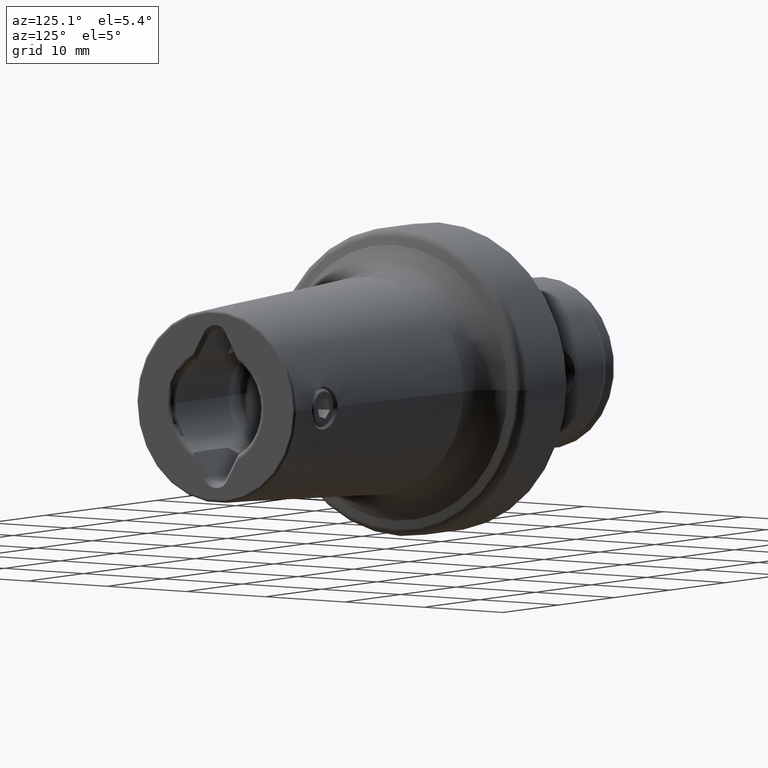
[diagram: clean part render]
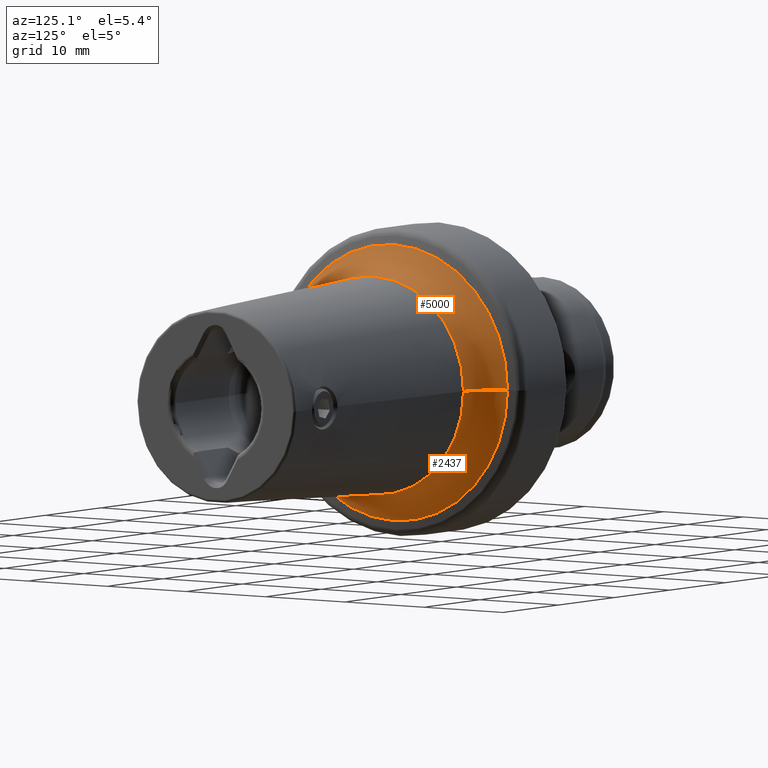
[diagram: same view with one multi-face feature highlighted, each face labeled with its STEP entity id]
A machine part, auxiliary view. The highlighted faces form ONE feature: a constant-radius fillet chain: 2 tangent blend faces with common blend radius 4 mm. The faces share edges in the B-rep.
Their STEP definitions:
[1] entity #2437 (Torus):
#1 = CIRCLE ( 'NONE', #835, 11.36020653218451300 ) ;
#100 = DIRECTION ( 'NONE',  ( 0.0000000000000000000, -1.000000000000000000, 1.224646799147353500E-016 ) ) ;
#102 = ORIENTED_EDGE ( 'NONE', *, *, #3608, .F. ) ;
#118 = ORIENTED_EDGE ( 'NONE', *, *, #3379, .F. ) ;
#123 = ORIENTED_EDGE ( 'NONE', *, *, #3262, .T. ) ;
#131 = ORIENTED_EDGE ( 'NONE', *, *, #3122, .F. ) ;
#196 = DIRECTION ( 'NONE',  ( -1.463217911389156000E-033, 1.224646799147353200E-016, 1.000000000000000000 ) ) ;
#298 = VERTEX_POINT ( 'NONE', #1690 ) ;
#377 = CARTESIAN_POINT ( 'NONE',  ( 12.31376596944992100, -15.35561945067635200, 1.880521020919563200E-015 ) ) ;
#781 = VERTEX_POINT ( 'NONE', #2693 ) ;
#835 = AXIS2_PLACEMENT_3D ( 'NONE', #2295, #2262, #2337 ) ;
#1007 = VERTEX_POINT ( 'NONE', #3657 ) ;
#1089 = AXIS2_PLACEMENT_3D ( 'NONE', #3638, #3626, #3622 ) ;
#1130 = CIRCLE ( 'NONE', #4697, 4.000000000000000000 ) ;
#1459 = TOROIDAL_SURFACE ( 'NONE', #4281, 15.35561945067635200, 4.000000000000000000 ) ;
#1574 = FACE_OUTER_BOUND ( 'NONE', #3812, .T. ) ;
#1690 = CARTESIAN_POINT ( 'NONE',  ( 8.450062664293648500, 14.32034327026628300, 1.811201322548821100E-015 ) ) ;
#2262 = DIRECTION ( 'NONE',  ( 1.000000000000000000, 1.194808096838946000E-017, -0.0000000000000000000 ) ) ;
#2295 = CARTESIAN_POINT ( 'NONE',  ( 12.12225719485066500, 5.283021692523478400E-016, 0.0000000000000000000 ) ) ;
#2337 = DIRECTION ( 'NONE',  ( 0.0000000000000000000, -1.000000000000000000, 0.0000000000000000000 ) ) ;
#2351 = DIRECTION ( 'NONE',  ( -1.194808096838946100E-017, 1.000000000000000000, 0.0000000000000000000 ) ) ;
#2378 = DIRECTION ( 'NONE',  ( 1.000000000000000000, 1.194808096838946000E-017, -0.0000000000000000000 ) ) ;
#2414 = CARTESIAN_POINT ( 'NONE',  ( 12.31376596944992100, 5.305903315974167600E-016, 0.0000000000000000000 ) ) ;
#2437 = ADVANCED_FACE ( 'NONE', ( #1574 ), #1459, .F. ) ;
#2693 = CARTESIAN_POINT ( 'NONE',  ( 12.12225719485066500, -11.36020653218451100, 0.0000000000000000000 ) ) ;
#3114 = CARTESIAN_POINT ( 'NONE',  ( 12.12225719485066500, 11.36020653218451000, 1.391224056729261400E-015 ) ) ;
#3122 = EDGE_CURVE ( 'NONE', #781, #3786, #1, .T. ) ;
#3262 = EDGE_CURVE ( 'NONE', #781, #1007, #1130, .T. ) ;
#3379 = EDGE_CURVE ( 'NONE', #298, #1007, #4931, .T. ) ;
#3608 = EDGE_CURVE ( 'NONE', #3786, #298, #4218, .T. ) ;
#3622 = DIRECTION ( 'NONE',  ( -1.000000000000000000, 0.0000000000000000000, 0.0000000000000000000 ) ) ;
#3626 = DIRECTION ( 'NONE',  ( -0.0000000000000000000, 0.0000000000000000000, -1.000000000000000000 ) ) ;
#3638 = CARTESIAN_POINT ( 'NONE',  ( 12.31376596944992100, 15.35561945067635200, 0.0000000000000000000 ) ) ;
#3657 = CARTESIAN_POINT ( 'NONE',  ( 8.450062664293648500, -14.32034327026628300, 0.0000000000000000000 ) ) ;
#3786 = VERTEX_POINT ( 'NONE', #3114 ) ;
#3812 = EDGE_LOOP ( 'NONE', ( #131, #123, #118, #102 ) ) ;
#4218 = CIRCLE ( 'NONE', #1089, 4.000000000000000000 ) ;
#4281 = AXIS2_PLACEMENT_3D ( 'NONE', #2414, #2378, #2351 ) ;
#4491 = AXIS2_PLACEMENT_3D ( 'NONE', #4566, #4560, #4554 ) ;
#4554 = DIRECTION ( 'NONE',  ( 0.0000000000000000000, -1.000000000000000000, 0.0000000000000000000 ) ) ;
#4560 = DIRECTION ( 'NONE',  ( -1.000000000000000000, -1.194808096838946000E-017, 0.0000000000000000000 ) ) ;
#4566 = CARTESIAN_POINT ( 'NONE',  ( 8.450062664293648500, 4.844264916695757000E-016, 0.0000000000000000000 ) ) ;
#4697 = AXIS2_PLACEMENT_3D ( 'NONE', #377, #196, #100 ) ;
#4931 = CIRCLE ( 'NONE', #4491, 14.32034327026628300 ) ;
[2] entity #5000 (Torus):
#100 = DIRECTION ( 'NONE',  ( 0.0000000000000000000, -1.000000000000000000, 1.224646799147353500E-016 ) ) ;
#196 = DIRECTION ( 'NONE',  ( -1.463217911389156000E-033, 1.224646799147353200E-016, 1.000000000000000000 ) ) ;
#298 = VERTEX_POINT ( 'NONE', #1690 ) ;
#317 = EDGE_LOOP ( 'NONE', ( #787, #854, #894, #921 ) ) ;
#377 = CARTESIAN_POINT ( 'NONE',  ( 12.31376596944992100, -15.35561945067635200, 1.880521020919563200E-015 ) ) ;
#503 = AXIS2_PLACEMENT_3D ( 'NONE', #4585, #4701, #4552 ) ;
#781 = VERTEX_POINT ( 'NONE', #2693 ) ;
#787 = ORIENTED_EDGE ( 'NONE', *, *, #3262, .F. ) ;
#854 = ORIENTED_EDGE ( 'NONE', *, *, #4184, .F. ) ;
#894 = ORIENTED_EDGE ( 'NONE', *, *, #3608, .T. ) ;
#921 = ORIENTED_EDGE ( 'NONE', *, *, #3547, .F. ) ;
#1007 = VERTEX_POINT ( 'NONE', #3657 ) ;
#1089 = AXIS2_PLACEMENT_3D ( 'NONE', #3638, #3626, #3622 ) ;
#1130 = CIRCLE ( 'NONE', #4697, 4.000000000000000000 ) ;
#1352 = AXIS2_PLACEMENT_3D ( 'NONE', #3736, #3728, #3721 ) ;
#1685 = DIRECTION ( 'NONE',  ( 0.0000000000000000000, -1.000000000000000000, 0.0000000000000000000 ) ) ;
#1690 = CARTESIAN_POINT ( 'NONE',  ( 8.450062664293648500, 14.32034327026628300, 1.811201322548821100E-015 ) ) ;
#1698 = DIRECTION ( 'NONE',  ( 1.000000000000000000, 1.194808096838946000E-017, -0.0000000000000000000 ) ) ;
#1700 = CARTESIAN_POINT ( 'NONE',  ( 12.12225719485066500, 5.283021692523478400E-016, 0.0000000000000000000 ) ) ;
#2693 = CARTESIAN_POINT ( 'NONE',  ( 12.12225719485066500, -11.36020653218451100, 0.0000000000000000000 ) ) ;
#3114 = CARTESIAN_POINT ( 'NONE',  ( 12.12225719485066500, 11.36020653218451000, 1.391224056729261400E-015 ) ) ;
#3171 = CIRCLE ( 'NONE', #4273, 11.36020653218451300 ) ;
#3262 = EDGE_CURVE ( 'NONE', #781, #1007, #1130, .T. ) ;
#3285 = CIRCLE ( 'NONE', #1352, 14.32034327026628300 ) ;
#3547 = EDGE_CURVE ( 'NONE', #1007, #298, #3285, .T. ) ;
#3608 = EDGE_CURVE ( 'NONE', #3786, #298, #4218, .T. ) ;
#3622 = DIRECTION ( 'NONE',  ( -1.000000000000000000, 0.0000000000000000000, 0.0000000000000000000 ) ) ;
#3626 = DIRECTION ( 'NONE',  ( -0.0000000000000000000, 0.0000000000000000000, -1.000000000000000000 ) ) ;
#3638 = CARTESIAN_POINT ( 'NONE',  ( 12.31376596944992100, 15.35561945067635200, 0.0000000000000000000 ) ) ;
#3657 = CARTESIAN_POINT ( 'NONE',  ( 8.450062664293648500, -14.32034327026628300, 0.0000000000000000000 ) ) ;
#3721 = DIRECTION ( 'NONE',  ( 0.0000000000000000000, -1.000000000000000000, 0.0000000000000000000 ) ) ;
#3728 = DIRECTION ( 'NONE',  ( -1.000000000000000000, -1.194808096838946000E-017, 0.0000000000000000000 ) ) ;
#3736 = CARTESIAN_POINT ( 'NONE',  ( 8.450062664293648500, 4.844264916695757000E-016, 0.0000000000000000000 ) ) ;
#3786 = VERTEX_POINT ( 'NONE', #3114 ) ;
#4037 = TOROIDAL_SURFACE ( 'NONE', #503, 15.35561945067635200, 4.000000000000000000 ) ;
#4184 = EDGE_CURVE ( 'NONE', #3786, #781, #3171, .T. ) ;
#4196 = FACE_OUTER_BOUND ( 'NONE', #317, .T. ) ;
#4218 = CIRCLE ( 'NONE', #1089, 4.000000000000000000 ) ;
#4273 = AXIS2_PLACEMENT_3D ( 'NONE', #1700, #1698, #1685 ) ;
#4552 = DIRECTION ( 'NONE',  ( -1.194808096838946100E-017, 1.000000000000000000, 0.0000000000000000000 ) ) ;
#4585 = CARTESIAN_POINT ( 'NONE',  ( 12.31376596944992100, 5.305903315974167600E-016, 0.0000000000000000000 ) ) ;
#4697 = AXIS2_PLACEMENT_3D ( 'NONE', #377, #196, #100 ) ;
#4701 = DIRECTION ( 'NONE',  ( 1.000000000000000000, 1.194808096838946000E-017, -0.0000000000000000000 ) ) ;
#5000 = ADVANCED_FACE ( 'NONE', ( #4196 ), #4037, .F. ) ;